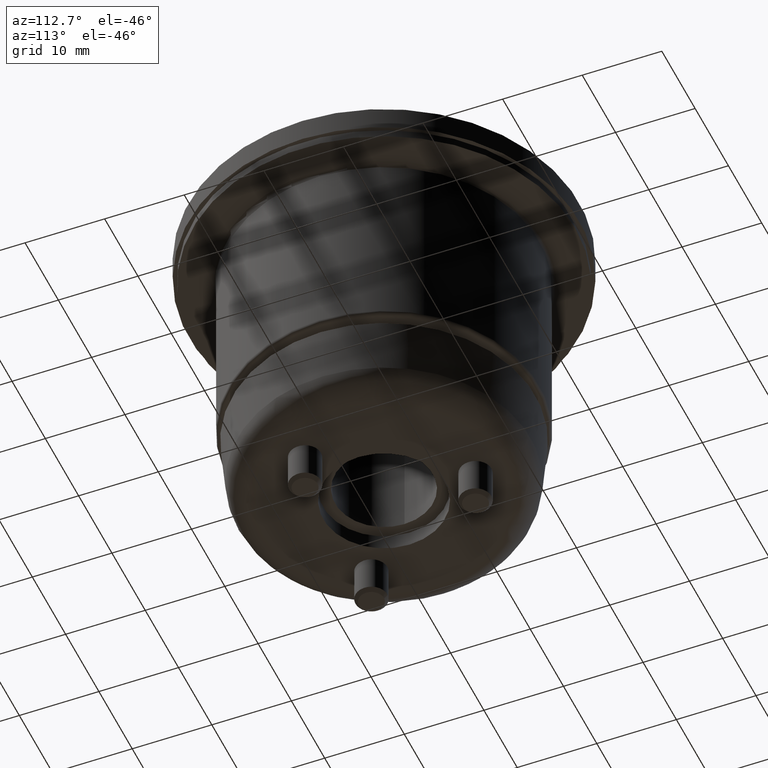
[diagram: clean part render]
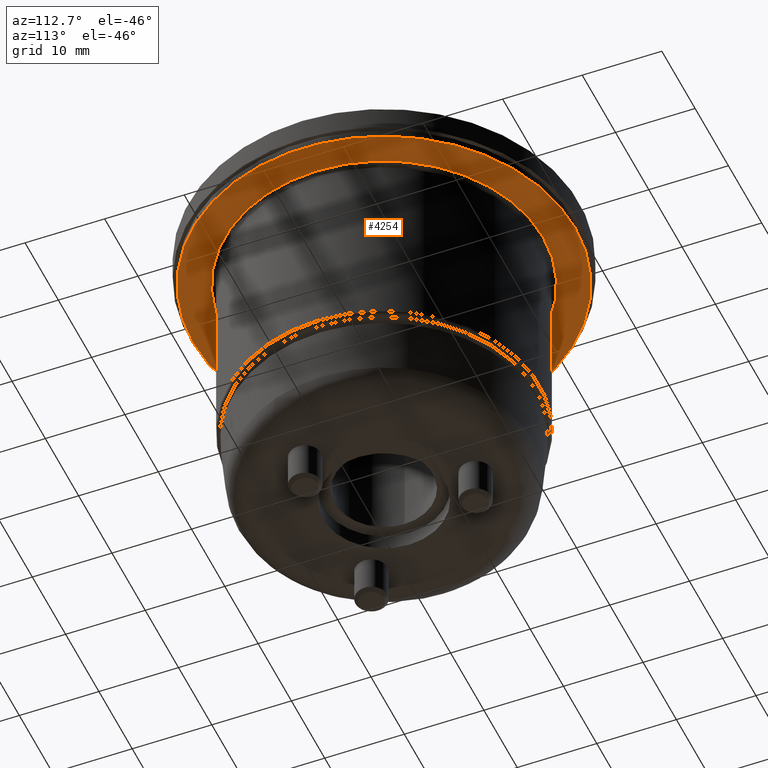
[diagram: same view with one face highlighted and labeled with its STEP entity id]
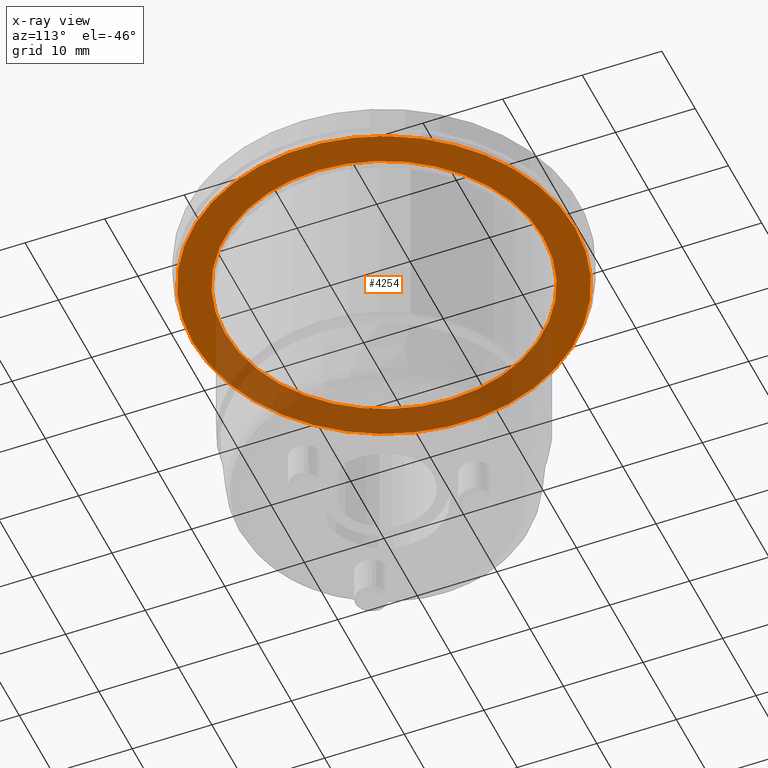
[diagram: x-ray of the same camera — body ghosted, the highlighted face saturated]
A machine part, auxiliary view. The second image highlights one B-rep face of the part: STEP entity #4254.
The next image is the same camera in x-ray: the body ghosted, the highlighted face saturated — about 35% of this face is hidden behind the body in this view.
In plain terms, the highlighted planar face has unit normal (-0, -0, -1).
Its self-contained STEP definition (entity closure, byte-faithful):
#327=FACE_BOUND('',#1434,.T.);
#376=PLANE('',#4626);
#1192=FACE_OUTER_BOUND('',#1433,.T.);
#1433=EDGE_LOOP('',(#2978));
#1434=EDGE_LOOP('',(#2979,#2980));
#1726=CIRCLE('',#4621,20.);
#1727=CIRCLE('',#4622,20.);
#1730=CIRCLE('',#4627,24.);
#1865=VERTEX_POINT('',#5921);
#1866=VERTEX_POINT('',#5923);
#1868=VERTEX_POINT('',#5932);
#2310=EDGE_CURVE('',#1865,#1866,#1726,.T.);
#2311=EDGE_CURVE('',#1866,#1865,#1727,.T.);
#2315=EDGE_CURVE('',#1868,#1868,#1730,.T.);
#2978=ORIENTED_EDGE('',*,*,#2315,.F.);
#2979=ORIENTED_EDGE('',*,*,#2311,.F.);
#2980=ORIENTED_EDGE('',*,*,#2310,.F.);
#4254=ADVANCED_FACE('',(#1192,#327),#376,.T.);
#4621=AXIS2_PLACEMENT_3D('',#5924,#4961,#4962);
#4622=AXIS2_PLACEMENT_3D('',#5925,#4963,#4964);
#4626=AXIS2_PLACEMENT_3D('',#5931,#4972,#4973);
#4627=AXIS2_PLACEMENT_3D('',#5933,#4974,#4975);
#4961=DIRECTION('center_axis',(0.,1.83697019872103E-16,-1.));
#4962=DIRECTION('ref_axis',(-1.,4.71017999672057E-18,8.65246028458761E-34));
#4963=DIRECTION('center_axis',(0.,1.83697019872103E-16,-1.));
#4964=DIRECTION('ref_axis',(-1.,4.71017999672057E-18,8.65246028458761E-34));
#4972=DIRECTION('center_axis',(0.,1.83697019872103E-16,-1.));
#4973=DIRECTION('ref_axis',(-1.,0.,0.));
#4974=DIRECTION('center_axis',(0.,-1.83697019872103E-16,1.));
#4975=DIRECTION('ref_axis',(0.,-1.,-1.83697019872103E-16));
#5921=CARTESIAN_POINT('',(-20.,-1.98603059591818E-15,34.));
#5923=CARTESIAN_POINT('',(20.,-2.08023419585259E-15,34.));
#5924=CARTESIAN_POINT('Origin',(-5.55111512312578E-16,4.63263002376526E-16,
34.));
#5925=CARTESIAN_POINT('Origin',(-5.55111512312578E-16,4.63263002376526E-16,
34.));
#5931=CARTESIAN_POINT('Origin',(0.,-20.075,34.));
#5932=CARTESIAN_POINT('',(-2.93915231795365E-15,24.,34.));
#5933=CARTESIAN_POINT('Origin',(0.,-6.2456986756515E-15,34.));